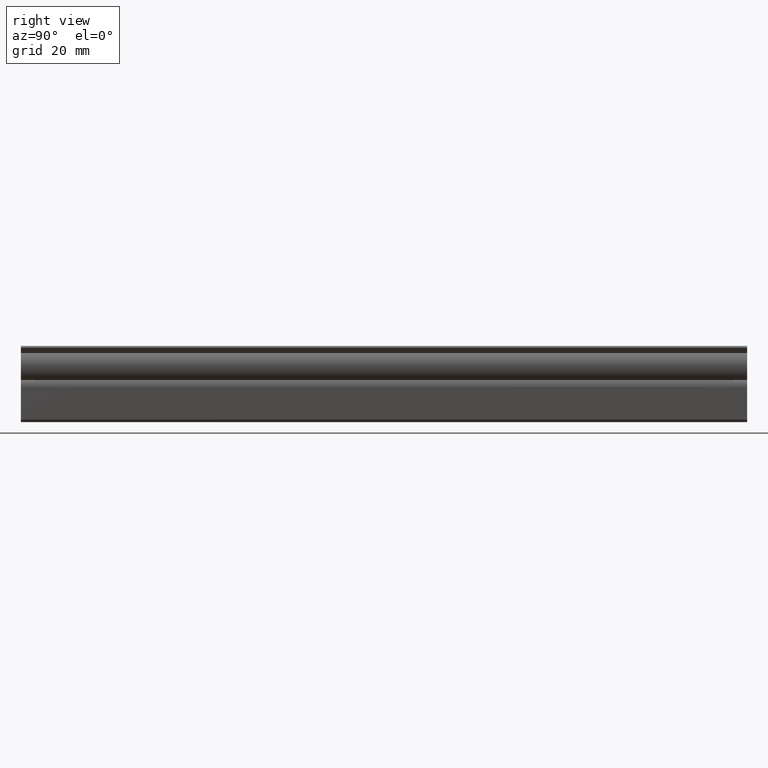
[diagram: clean part render]
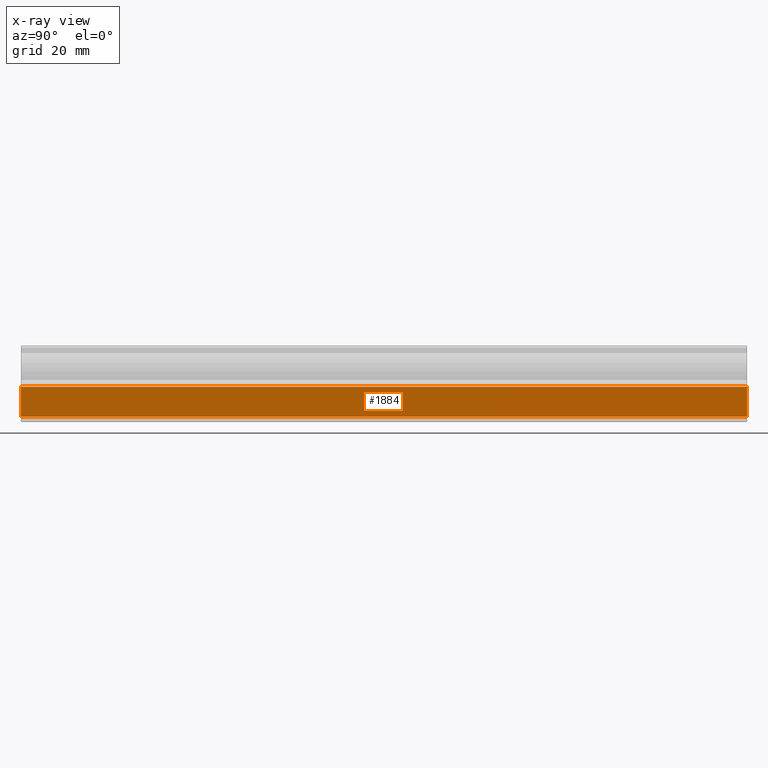
[diagram: x-ray — body ghosted, one internal face saturated and labeled with its STEP entity id]
A machine part, right view, then the same camera in x-ray: the body is ghosted and one INTERNAL B-rep face — a face not visible from any outside direction — is saturated and labeled: STEP entity #1884.
In plain terms, the highlighted face is a freeform B-spline surface patch.
Its self-contained STEP definition (entity closure, byte-faithful):
#1225=CARTESIAN_POINT('',(-3.400185990622960,0.0,-11.307314311838020));
#1226=VERTEX_POINT('',#1225);
#1240=CARTESIAN_POINT('',(-2.900185990622960,0.0,-19.493903810041949));
#1241=VERTEX_POINT('',#1240);
#1242=CARTESIAN_POINT('',(-3.400185990622960,0.0,-11.307314311838020));
#1243=CARTESIAN_POINT('',(-2.900185990622960,0.0,-19.493903810041949));
#1244=QUASI_UNIFORM_CURVE('',1,(#1242,#1243),.UNSPECIFIED.,.F.,.U.);
#1245=EDGE_CURVE('',#1226,#1241,#1244,.T.);
#1781=CARTESIAN_POINT('',(-2.900185990622960,200.0,-19.493903810041949));
#1782=VERTEX_POINT('',#1781);
#1788=CARTESIAN_POINT('',(-3.400185990622960,200.0,-11.307314311838020));
#1789=VERTEX_POINT('',#1788);
#1790=CARTESIAN_POINT('',(-3.400185990622960,200.0,-11.307314311838020));
#1791=CARTESIAN_POINT('',(-2.900185990622960,200.0,-19.493903810041949));
#1792=QUASI_UNIFORM_CURVE('',1,(#1790,#1791),.UNSPECIFIED.,.F.,.U.);
#1793=EDGE_CURVE('',#1789,#1782,#1792,.T.);
#1861=CARTESIAN_POINT('',(-3.400185990622960,200.0,-11.307314311838020));
#1862=CARTESIAN_POINT('',(-3.400185990622960,0.0,-11.307314311838020));
#1863=QUASI_UNIFORM_CURVE('',1,(#1861,#1862),.UNSPECIFIED.,.F.,.U.);
#1864=EDGE_CURVE('',#1789,#1226,#1863,.T.);
#1869=CARTESIAN_POINT('',(-2.875210972817488,-9.989999612361194,-19.902824247009420));
#1870=CARTESIAN_POINT('',(-3.425161003958083,-9.989999612361194,-10.898393948064371));
#1871=CARTESIAN_POINT('',(-2.875210972817488,209.990004976779200,-19.902824247009420));
#1872=CARTESIAN_POINT('',(-3.425161003958083,209.990004976779200,-10.898393948064371));
#1873=B_SPLINE_SURFACE_WITH_KNOTS('',1,1,((#1869,#1871),(#1870,#1872)),.UNSPECIFIED.,.F.,.F.,.U.,(2,2),(2,2),(0.0,9.021208901544808),(0.0,219.980004589140410),.UNSPECIFIED.);
#1874=ORIENTED_EDGE('',*,*,#1245,.F.);
#1875=ORIENTED_EDGE('',*,*,#1864,.F.);
#1876=ORIENTED_EDGE('',*,*,#1793,.T.);
#1877=CARTESIAN_POINT('',(-2.900185990622960,200.0,-19.493903810041949));
#1878=CARTESIAN_POINT('',(-2.900185990622960,0.0,-19.493903810041949));
#1879=QUASI_UNIFORM_CURVE('',1,(#1877,#1878),.UNSPECIFIED.,.F.,.U.);
#1880=EDGE_CURVE('',#1782,#1241,#1879,.T.);
#1881=ORIENTED_EDGE('',*,*,#1880,.T.);
#1882=EDGE_LOOP('',(#1874,#1875,#1876,#1881));
#1883=FACE_OUTER_BOUND('',#1882,.T.);
#1884=ADVANCED_FACE('',(#1883),#1873,.T.);